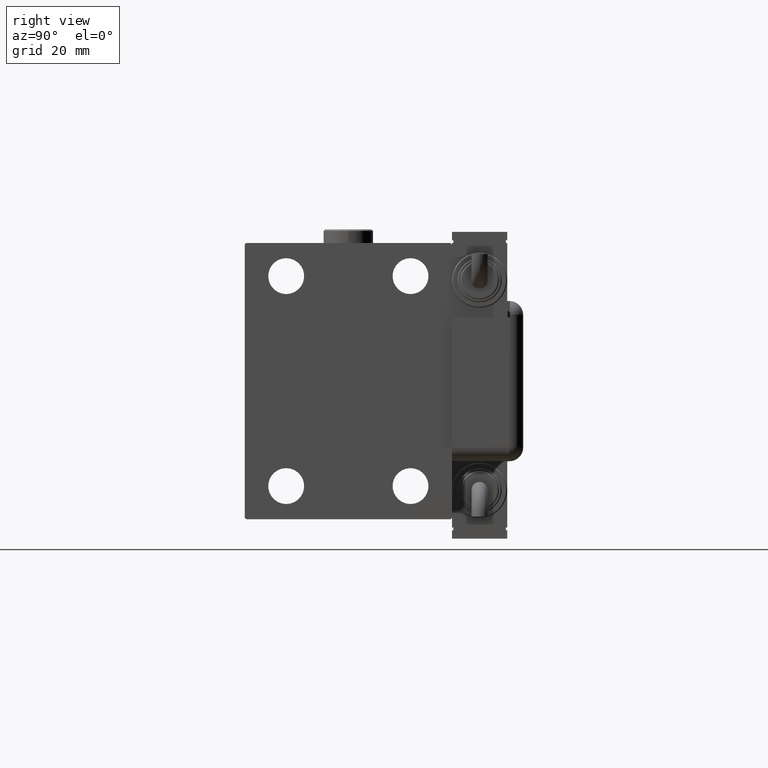
[diagram: clean part render]
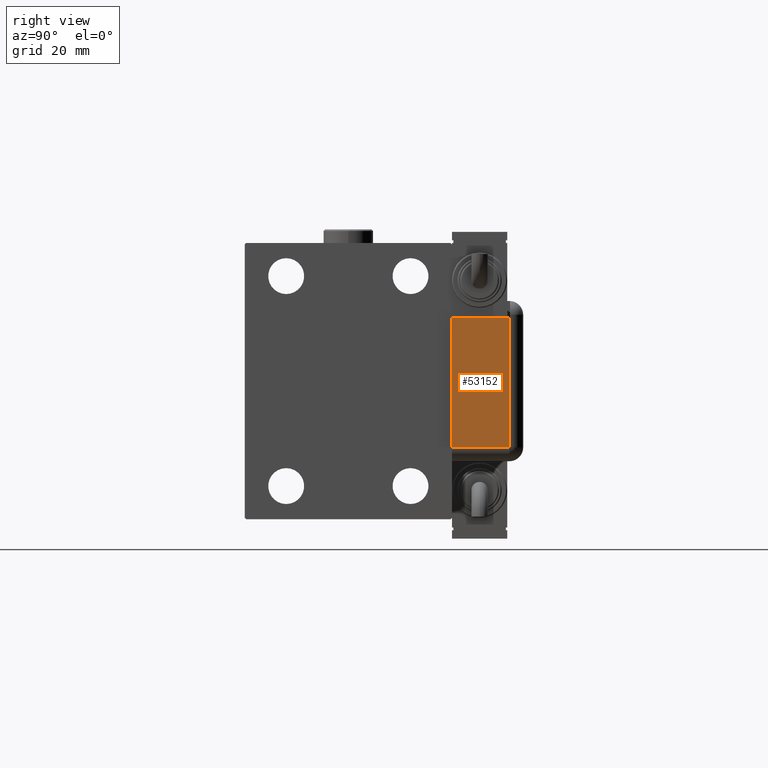
[diagram: same view with one face highlighted and labeled with its STEP entity id]
A machine part, right view. The second image highlights one B-rep face of the part: STEP entity #53152.
In plain terms, the highlighted planar face has unit normal (1, -0, -0).
Its self-contained STEP definition (entity closure, byte-faithful):
#651 = VERTEX_POINT ( 'NONE', #50669 ) ;
#3668 = VERTEX_POINT ( 'NONE', #20068 ) ;
#6367 = VERTEX_POINT ( 'NONE', #56180 ) ;
#7151 = EDGE_CURVE ( 'NONE', #53343, #3668, #56511, .T. ) ;
#7429 = EDGE_CURVE ( 'NONE', #3668, #651, #32134, .T. ) ;
#8487 = CARTESIAN_POINT ( 'NONE',  ( 23.99999999999999289, 20.79999999999998295, 0.000000000000000000 ) ) ;
#11829 = EDGE_CURVE ( 'NONE', #53343, #6367, #30929, .T. ) ;
#18488 = VECTOR ( 'NONE', #31164, 1000.000000000000000 ) ;
#20068 = CARTESIAN_POINT ( 'NONE',  ( -23.99999999999999645, 20.79999999999998295, 0.000000000000000000 ) ) ;
#22264 = CARTESIAN_POINT ( 'NONE',  ( -23.99999999999999645, 20.79999999999998295, 0.000000000000000000 ) ) ;
#22382 = VECTOR ( 'NONE', #42410, 1000.000000000000000 ) ;
#24330 = PLANE ( 'NONE',  #32283 ) ;
#28584 = VECTOR ( 'NONE', #32073, 1000.000000000000000 ) ;
#30253 = ORIENTED_EDGE ( 'NONE', *, *, #7151, .T. ) ;
#30929 = LINE ( 'NONE', #32389, #28584 ) ;
#31164 = DIRECTION ( 'NONE',  ( 0.000000000000000000, 1.000000000000000000, 0.000000000000000000 ) ) ;
#32073 = DIRECTION ( 'NONE',  ( 1.000000000000000000, -2.079047426506382950E-15, -0.000000000000000000 ) ) ;
#32134 = LINE ( 'NONE', #8487, #22382 ) ;
#32283 = AXIS2_PLACEMENT_3D ( 'NONE', #57351, #57651, #39261 ) ;
#32389 = CARTESIAN_POINT ( 'NONE',  ( 28.99999999999999645, -9.421223957302265857E-15, 0.000000000000000000 ) ) ;
#34360 = VECTOR ( 'NONE', #37193, 1000.000000000000000 ) ;
#34973 = ORIENTED_EDGE ( 'NONE', *, *, #55572, .F. ) ;
#37193 = DIRECTION ( 'NONE',  ( -0.000000000000000000, 1.000000000000000000, -0.000000000000000000 ) ) ;
#39261 = DIRECTION ( 'NONE',  ( -1.000000000000000000, 0.000000000000000000, -0.000000000000000000 ) ) ;
#42410 = DIRECTION ( 'NONE',  ( 1.000000000000000000, -0.000000000000000000, -0.000000000000000000 ) ) ;
#42411 = ORIENTED_EDGE ( 'NONE', *, *, #11829, .F. ) ;
#43337 = FACE_OUTER_BOUND ( 'NONE', #44674, .T. ) ;
#44674 = EDGE_LOOP ( 'NONE', ( #55772, #34973, #42411, #30253 ) ) ;
#50669 = CARTESIAN_POINT ( 'NONE',  ( 23.00000000000000000, 20.79999999999998295, 1.734723475976807094E-15 ) ) ;
#52927 = CARTESIAN_POINT ( 'NONE',  ( -23.99999999999999289, 1.007682896475360021E-13, 0.000000000000000000 ) ) ;
#53152 = ADVANCED_FACE ( 'NONE', ( #43337 ), #24330, .T. ) ;
#53343 = VERTEX_POINT ( 'NONE', #52927 ) ;
#54847 = LINE ( 'NONE', #55148, #18488 ) ;
#55148 = CARTESIAN_POINT ( 'NONE',  ( 23.00000000000000000, 0.000000000000000000, 0.000000000000000000 ) ) ;
#55572 = EDGE_CURVE ( 'NONE', #6367, #651, #54847, .T. ) ;
#55772 = ORIENTED_EDGE ( 'NONE', *, *, #7429, .T. ) ;
#56180 = CARTESIAN_POINT ( 'NONE',  ( 23.00000000000000000, 0.000000000000000000, 0.000000000000000000 ) ) ;
#56511 = LINE ( 'NONE', #22264, #34360 ) ;
#57351 = CARTESIAN_POINT ( 'NONE',  ( 0.000000000000000000, 0.000000000000000000, 0.000000000000000000 ) ) ;
#57651 = DIRECTION ( 'NONE',  ( 0.000000000000000000, 0.000000000000000000, -1.000000000000000000 ) ) ;